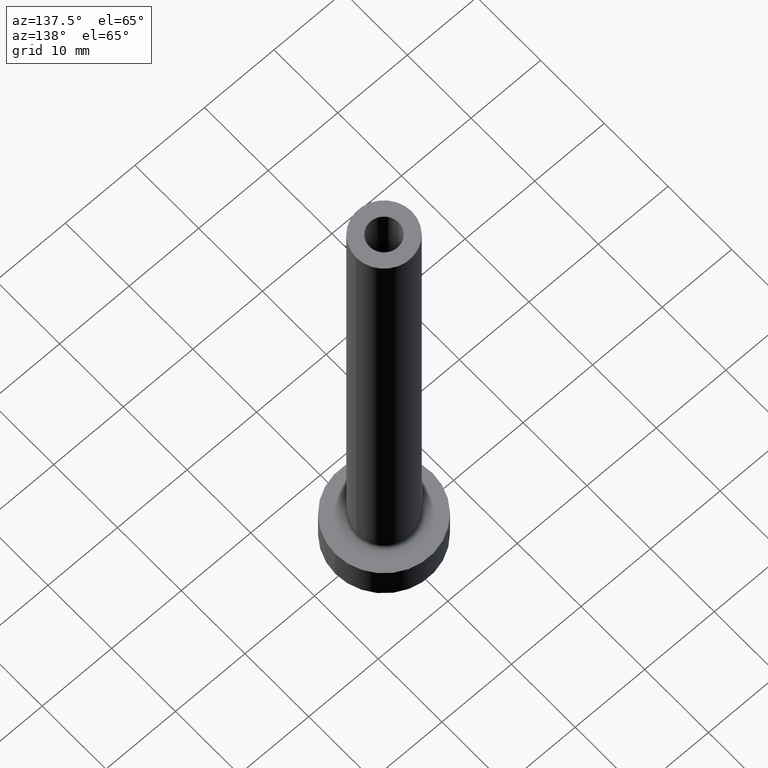
[diagram: clean part render]
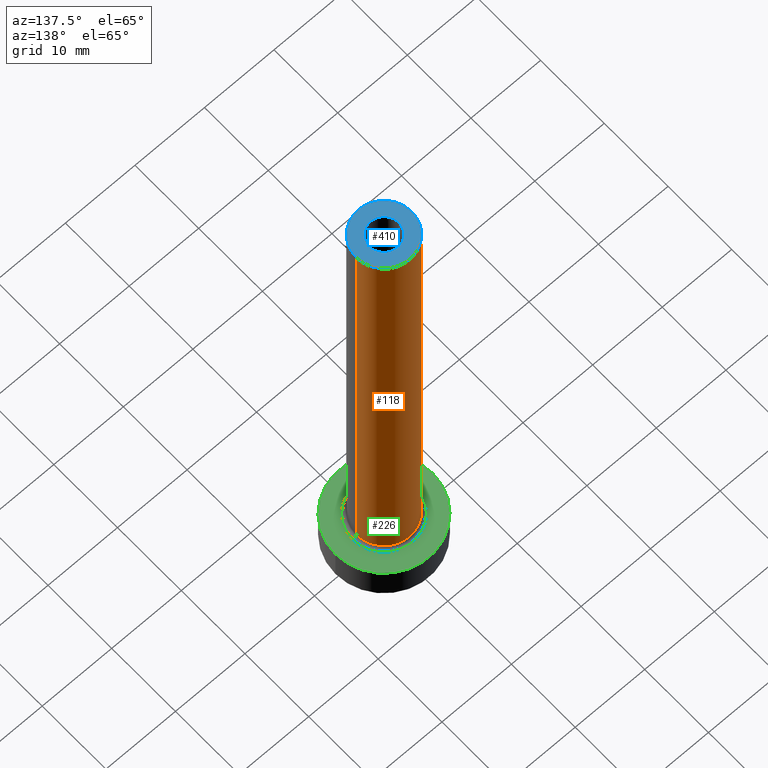
[diagram: same view with three faces highlighted in distinct colors, each labeled with its STEP entity id]
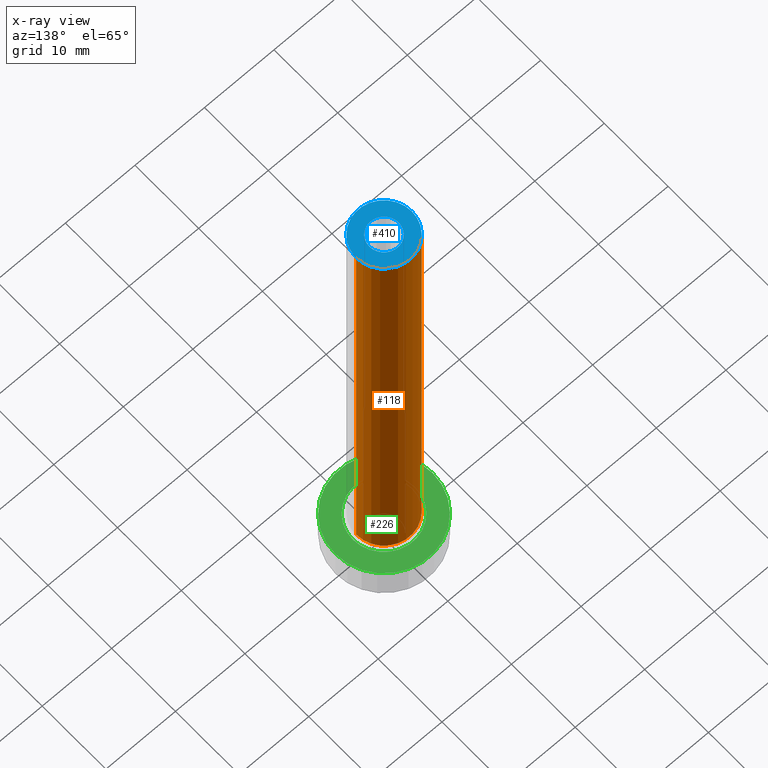
[diagram: x-ray of the same camera — body ghosted, the three highlighted faces saturated]
A machine part, auxiliary view with three faces highlighted in distinct colors.
The next image is the same camera in x-ray (body ghosted, the three faces saturated) — at least one of them is partly hidden behind the body in this view.
Their STEP definitions:

[orange] entity #118 — the highlighted cylindrical surface (partial cylindrical patch) has radius 4 mm, axis along (-0, -0, -1).
#3 = DIRECTION ( 'NONE',  ( -0.000000000000000000, -0.000000000000000000, -1.000000000000000000 ) ) ;
#9 = CARTESIAN_POINT ( 'NONE',  ( 0.000000000000000000, 0.000000000000000000, 75.00000000000001421 ) ) ;
#11 = EDGE_CURVE ( 'NONE', #375, #208, #232, .T. ) ;
#28 = CARTESIAN_POINT ( 'NONE',  ( 0.000000000000000000, 0.000000000000000000, 75.00000000000001421 ) ) ;
#31 = DIRECTION ( 'NONE',  ( 0.000000000000000000, 0.000000000000000000, 1.000000000000000000 ) ) ;
#48 = ORIENTED_EDGE ( 'NONE', *, *, #269, .F. ) ;
#52 = CARTESIAN_POINT ( 'NONE',  ( 0.000000000000000000, 0.000000000000000000, 5.500000000000005329 ) ) ;
#66 = DIRECTION ( 'NONE',  ( 1.000000000000000000, 0.000000000000000000, 0.000000000000000000 ) ) ;
#115 = CARTESIAN_POINT ( 'NONE',  ( 4.000000000000000000, 4.898587196589412829E-16, 75.00000000000001421 ) ) ;
#118 = ADVANCED_FACE ( 'NONE', ( #126 ), #278, .T. ) ;
#120 = DIRECTION ( 'NONE',  ( -0.000000000000000000, -0.000000000000000000, -1.000000000000000000 ) ) ;
#122 = DIRECTION ( 'NONE',  ( 0.000000000000000000, 0.000000000000000000, 1.000000000000000000 ) ) ;
#126 = FACE_OUTER_BOUND ( 'NONE', #139, .T. ) ;
#139 = EDGE_LOOP ( 'NONE', ( #204, #289, #185, #48 ) ) ;
#166 = VECTOR ( 'NONE', #120, 1000.000000000000000 ) ;
#181 = CARTESIAN_POINT ( 'NONE',  ( -4.000000000000000000, 0.000000000000000000, 75.00000000000001421 ) ) ;
#185 = ORIENTED_EDGE ( 'NONE', *, *, #279, .T. ) ;
#204 = ORIENTED_EDGE ( 'NONE', *, *, #11, .F. ) ;
#207 = CARTESIAN_POINT ( 'NONE',  ( 4.000000000000000000, 4.898587196589412829E-16, 5.500000000000005329 ) ) ;
#208 = VERTEX_POINT ( 'NONE', #265 ) ;
#225 = LINE ( 'NONE', #181, #435 ) ;
#232 = CIRCLE ( 'NONE', #365, 4.000000000000000000 ) ;
#237 = DIRECTION ( 'NONE',  ( 1.000000000000000000, 0.000000000000000000, 0.000000000000000000 ) ) ;
#241 = CARTESIAN_POINT ( 'NONE',  ( -4.000000000000000000, 0.000000000000000000, 5.500000000000005329 ) ) ;
#260 = AXIS2_PLACEMENT_3D ( 'NONE', #9, #262, #298 ) ;
#261 = AXIS2_PLACEMENT_3D ( 'NONE', #52, #122, #237 ) ;
#262 = DIRECTION ( 'NONE',  ( -0.000000000000000000, -0.000000000000000000, -1.000000000000000000 ) ) ;
#265 = CARTESIAN_POINT ( 'NONE',  ( -4.000000000000000000, 0.000000000000000000, 75.00000000000001421 ) ) ;
#269 = EDGE_CURVE ( 'NONE', #208, #314, #225, .T. ) ;
#278 = CYLINDRICAL_SURFACE ( 'NONE', #260, 4.000000000000000000 ) ;
#279 = EDGE_CURVE ( 'NONE', #378, #314, #379, .T. ) ;
#289 = ORIENTED_EDGE ( 'NONE', *, *, #297, .T. ) ;
#297 = EDGE_CURVE ( 'NONE', #375, #378, #304, .T. ) ;
#298 = DIRECTION ( 'NONE',  ( -1.000000000000000000, 0.000000000000000000, 0.000000000000000000 ) ) ;
#304 = LINE ( 'NONE', #115, #166 ) ;
#314 = VERTEX_POINT ( 'NONE', #241 ) ;
#365 = AXIS2_PLACEMENT_3D ( 'NONE', #28, #31, #66 ) ;
#375 = VERTEX_POINT ( 'NONE', #419 ) ;
#378 = VERTEX_POINT ( 'NONE', #207 ) ;
#379 = CIRCLE ( 'NONE', #261, 4.000000000000000000 ) ;
#419 = CARTESIAN_POINT ( 'NONE',  ( 4.000000000000000000, 4.898587196589412829E-16, 75.00000000000001421 ) ) ;
#435 = VECTOR ( 'NONE', #3, 1000.000000000000000 ) ;

[blue] entity #410 — the highlighted planar face has unit normal (0, 0, 1).
#11 = EDGE_CURVE ( 'NONE', #375, #208, #232, .T. ) ;
#13 = AXIS2_PLACEMENT_3D ( 'NONE', #141, #327, #408 ) ;
#18 = AXIS2_PLACEMENT_3D ( 'NONE', #86, #168, #460 ) ;
#20 = ORIENTED_EDGE ( 'NONE', *, *, #112, .F. ) ;
#28 = CARTESIAN_POINT ( 'NONE',  ( 0.000000000000000000, 0.000000000000000000, 75.00000000000001421 ) ) ;
#31 = DIRECTION ( 'NONE',  ( 0.000000000000000000, 0.000000000000000000, 1.000000000000000000 ) ) ;
#63 = DIRECTION ( 'NONE',  ( 0.000000000000000000, 0.000000000000000000, 1.000000000000000000 ) ) ;
#64 = ORIENTED_EDGE ( 'NONE', *, *, #206, .F. ) ;
#66 = DIRECTION ( 'NONE',  ( 1.000000000000000000, 0.000000000000000000, 0.000000000000000000 ) ) ;
#70 = ORIENTED_EDGE ( 'NONE', *, *, #248, .T. ) ;
#73 = CARTESIAN_POINT ( 'NONE',  ( 2.100000000000000089, 2.571758278209441464E-16, 75.00000000000001421 ) ) ;
#74 = EDGE_LOOP ( 'NONE', ( #70, #97 ) ) ;
#84 = CIRCLE ( 'NONE', #353, 2.100000000000000089 ) ;
#86 = CARTESIAN_POINT ( 'NONE',  ( 0.000000000000000000, 0.000000000000000000, 75.00000000000001421 ) ) ;
#97 = ORIENTED_EDGE ( 'NONE', *, *, #11, .T. ) ;
#104 = DIRECTION ( 'NONE',  ( 0.000000000000000000, 0.000000000000000000, 1.000000000000000000 ) ) ;
#112 = EDGE_CURVE ( 'NONE', #127, #209, #84, .T. ) ;
#127 = VERTEX_POINT ( 'NONE', #73 ) ;
#141 = CARTESIAN_POINT ( 'NONE',  ( 0.000000000000000000, 0.000000000000000000, 75.00000000000001421 ) ) ;
#149 = CARTESIAN_POINT ( 'NONE',  ( 0.000000000000000000, 0.000000000000000000, 75.00000000000001421 ) ) ;
#168 = DIRECTION ( 'NONE',  ( 0.000000000000000000, 0.000000000000000000, 1.000000000000000000 ) ) ;
#206 = EDGE_CURVE ( 'NONE', #209, #127, #440, .T. ) ;
#208 = VERTEX_POINT ( 'NONE', #265 ) ;
#209 = VERTEX_POINT ( 'NONE', #296 ) ;
#216 = PLANE ( 'NONE',  #18 ) ;
#221 = DIRECTION ( 'NONE',  ( 1.000000000000000000, 0.000000000000000000, 0.000000000000000000 ) ) ;
#232 = CIRCLE ( 'NONE', #365, 4.000000000000000000 ) ;
#248 = EDGE_CURVE ( 'NONE', #208, #375, #321, .T. ) ;
#265 = CARTESIAN_POINT ( 'NONE',  ( -4.000000000000000000, 0.000000000000000000, 75.00000000000001421 ) ) ;
#290 = CARTESIAN_POINT ( 'NONE',  ( 0.000000000000000000, 0.000000000000000000, 75.00000000000001421 ) ) ;
#296 = CARTESIAN_POINT ( 'NONE',  ( -2.100000000000000089, 0.000000000000000000, 75.00000000000001421 ) ) ;
#302 = DIRECTION ( 'NONE',  ( 1.000000000000000000, 0.000000000000000000, 0.000000000000000000 ) ) ;
#321 = CIRCLE ( 'NONE', #388, 4.000000000000000000 ) ;
#327 = DIRECTION ( 'NONE',  ( 0.000000000000000000, 0.000000000000000000, 1.000000000000000000 ) ) ;
#341 = EDGE_LOOP ( 'NONE', ( #64, #20 ) ) ;
#345 = FACE_BOUND ( 'NONE', #341, .T. ) ;
#353 = AXIS2_PLACEMENT_3D ( 'NONE', #290, #63, #221 ) ;
#365 = AXIS2_PLACEMENT_3D ( 'NONE', #28, #31, #66 ) ;
#375 = VERTEX_POINT ( 'NONE', #419 ) ;
#388 = AXIS2_PLACEMENT_3D ( 'NONE', #149, #104, #302 ) ;
#408 = DIRECTION ( 'NONE',  ( 1.000000000000000000, 0.000000000000000000, 0.000000000000000000 ) ) ;
#410 = ADVANCED_FACE ( 'NONE', ( #345, #414 ), #216, .T. ) ;
#414 = FACE_OUTER_BOUND ( 'NONE', #74, .T. ) ;
#419 = CARTESIAN_POINT ( 'NONE',  ( 4.000000000000000000, 4.898587196589412829E-16, 75.00000000000001421 ) ) ;
#440 = CIRCLE ( 'NONE', #13, 2.100000000000000089 ) ;
#460 = DIRECTION ( 'NONE',  ( 1.000000000000000000, 0.000000000000000000, -0.000000000000000000 ) ) ;

[green] entity #226 — the highlighted planar face has unit normal (0, 0, 1).
#19 = ORIENTED_EDGE ( 'NONE', *, *, #49, .T. ) ;
#40 = EDGE_CURVE ( 'NONE', #93, #303, #160, .T. ) ;
#44 = EDGE_CURVE ( 'NONE', #303, #93, #165, .T. ) ;
#49 = EDGE_CURVE ( 'NONE', #357, #198, #301, .T. ) ;
#69 = ORIENTED_EDGE ( 'NONE', *, *, #449, .T. ) ;
#93 = VERTEX_POINT ( 'NONE', #256 ) ;
#130 = DIRECTION ( 'NONE',  ( 0.000000000000000000, 0.000000000000000000, 1.000000000000000000 ) ) ;
#132 = DIRECTION ( 'NONE',  ( 1.000000000000000000, 0.000000000000000000, 0.000000000000000000 ) ) ;
#138 = CARTESIAN_POINT ( 'NONE',  ( 0.000000000000000000, 0.000000000000000000, 5.000000000000000000 ) ) ;
#151 = AXIS2_PLACEMENT_3D ( 'NONE', #169, #212, #352 ) ;
#152 = CIRCLE ( 'NONE', #295, 4.500000000000000888 ) ;
#156 = EDGE_LOOP ( 'NONE', ( #19, #69 ) ) ;
#160 = CIRCLE ( 'NONE', #174, 7.000000000000000000 ) ;
#165 = CIRCLE ( 'NONE', #285, 7.000000000000000000 ) ;
#169 = CARTESIAN_POINT ( 'NONE',  ( 0.000000000000000000, 0.000000000000000000, 5.000000000000000000 ) ) ;
#174 = AXIS2_PLACEMENT_3D ( 'NONE', #138, #349, #132 ) ;
#190 = CARTESIAN_POINT ( 'NONE',  ( -4.500000000000000888, 5.510910596163088569E-16, 5.000000000000002665 ) ) ;
#198 = VERTEX_POINT ( 'NONE', #190 ) ;
#212 = DIRECTION ( 'NONE',  ( -0.000000000000000000, -0.000000000000000000, -1.000000000000000000 ) ) ;
#226 = ADVANCED_FACE ( 'NONE', ( #233, #367 ), #334, .T. ) ;
#233 = FACE_BOUND ( 'NONE', #156, .T. ) ;
#256 = CARTESIAN_POINT ( 'NONE',  ( -7.000000000000000000, 0.000000000000000000, 5.000000000000000000 ) ) ;
#259 = ORIENTED_EDGE ( 'NONE', *, *, #40, .T. ) ;
#266 = ORIENTED_EDGE ( 'NONE', *, *, #44, .T. ) ;
#273 = CARTESIAN_POINT ( 'NONE',  ( 7.000000000000000000, 8.572527594031473190E-16, 5.000000000000000000 ) ) ;
#285 = AXIS2_PLACEMENT_3D ( 'NONE', #287, #130, #382 ) ;
#287 = CARTESIAN_POINT ( 'NONE',  ( 0.000000000000000000, 0.000000000000000000, 5.000000000000000000 ) ) ;
#295 = AXIS2_PLACEMENT_3D ( 'NONE', #390, #316, #383 ) ;
#301 = CIRCLE ( 'NONE', #151, 4.500000000000000888 ) ;
#303 = VERTEX_POINT ( 'NONE', #273 ) ;
#310 = AXIS2_PLACEMENT_3D ( 'NONE', #330, #369, #402 ) ;
#316 = DIRECTION ( 'NONE',  ( -0.000000000000000000, -0.000000000000000000, -1.000000000000000000 ) ) ;
#330 = CARTESIAN_POINT ( 'NONE',  ( 0.000000000000000000, 0.000000000000000000, 5.000000000000000000 ) ) ;
#334 = PLANE ( 'NONE',  #310 ) ;
#337 = EDGE_LOOP ( 'NONE', ( #259, #266 ) ) ;
#349 = DIRECTION ( 'NONE',  ( 0.000000000000000000, 0.000000000000000000, 1.000000000000000000 ) ) ;
#352 = DIRECTION ( 'NONE',  ( 1.000000000000000000, 0.000000000000000000, 0.000000000000000000 ) ) ;
#357 = VERTEX_POINT ( 'NONE', #374 ) ;
#367 = FACE_OUTER_BOUND ( 'NONE', #337, .T. ) ;
#369 = DIRECTION ( 'NONE',  ( 0.000000000000000000, 0.000000000000000000, 1.000000000000000000 ) ) ;
#374 = CARTESIAN_POINT ( 'NONE',  ( 4.500000000000000888, 0.000000000000000000, 5.000000000000002665 ) ) ;
#382 = DIRECTION ( 'NONE',  ( 1.000000000000000000, 0.000000000000000000, 0.000000000000000000 ) ) ;
#383 = DIRECTION ( 'NONE',  ( 1.000000000000000000, 0.000000000000000000, 0.000000000000000000 ) ) ;
#390 = CARTESIAN_POINT ( 'NONE',  ( 0.000000000000000000, 0.000000000000000000, 5.000000000000000000 ) ) ;
#402 = DIRECTION ( 'NONE',  ( 1.000000000000000000, 0.000000000000000000, -0.000000000000000000 ) ) ;
#449 = EDGE_CURVE ( 'NONE', #198, #357, #152, .T. ) ;